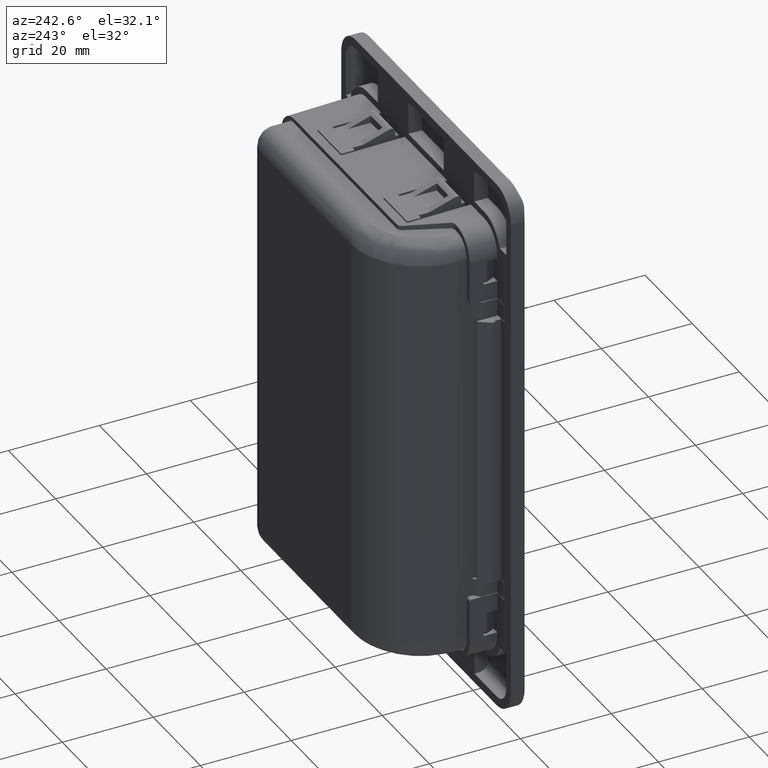
[diagram: clean part render]
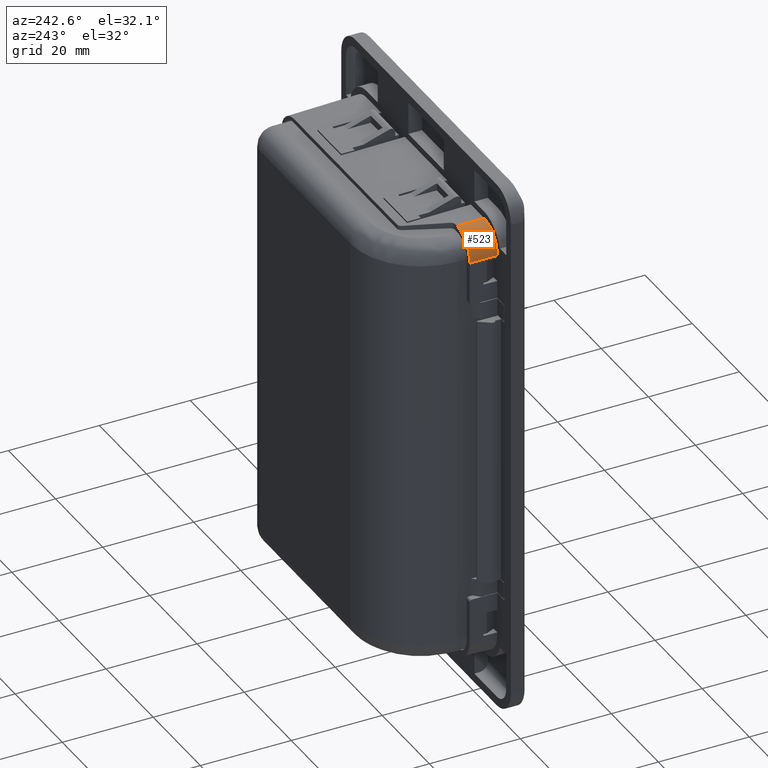
[diagram: same view with one face highlighted and labeled with its STEP entity id]
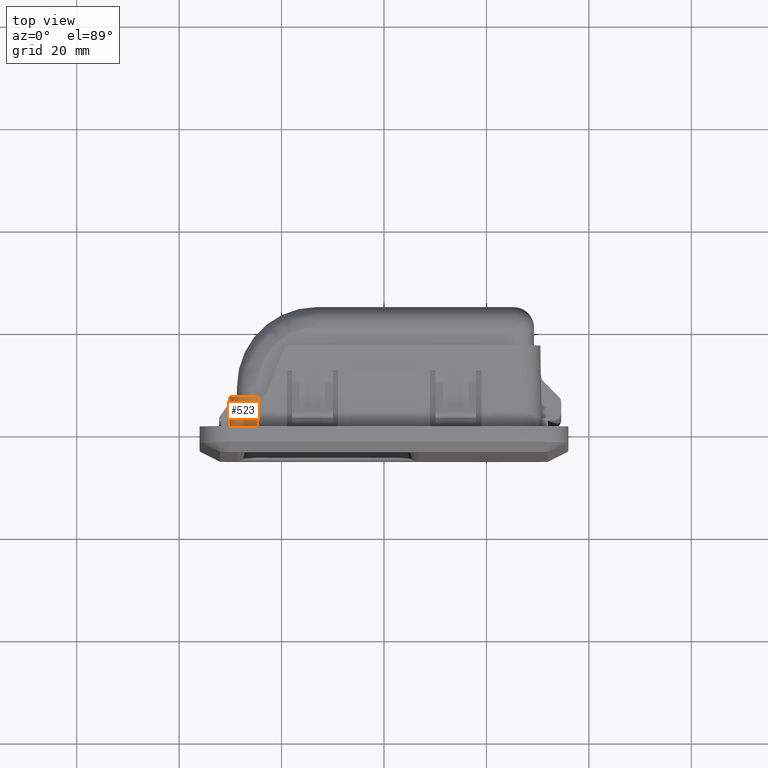
[diagram: same view with one face highlighted and labeled with its STEP entity id]
A machine part, auxiliary view. The second image highlights one B-rep face of the part: STEP entity #523.
A second angle (top view) of the same face is appended — the face is thin or edge-on in the first view.
In plain terms, the highlighted cylindrical surface (edge-blend (fillet) strip) has radius 5.5 mm, axis along (0.0174, 0.9997, -0.0174).
Its self-contained STEP definition (entity closure, byte-faithful):
#523=ADVANCED_FACE('',(#5877),#5876,.T.);
#5876=CYLINDRICAL_SURFACE('',#13506,5.50000000000E+000);
#5877=FACE_OUTER_BOUND('',#13507,.T.);
#13503=CARTESIAN_POINT('',(-8.58855975508E+001,-3.50536853383E+003,1.04985597551E+002));
#13504=DIRECTION('',(1.74497491607E-002,9.99695459882E-001,-1.74497491607E-002));
#13505=DIRECTION('',(-9.99847695156E-001,1.74524064372E-002,-6.95274637559E-012));
#13506=AXIS2_PLACEMENT_3D('',#13503,#13504,#13505);
#13507=EDGE_LOOP('',(#21431,#21432,#21433,#21434));
#21431=ORIENTED_EDGE('',*,*,#25484,.F.);
#21432=ORIENTED_EDGE('',*,*,#25485,.F.);
#21433=ORIENTED_EDGE('',*,*,#25486,.F.);
#21434=ORIENTED_EDGE('',*,*,#25066,.F.);
#25066=EDGE_CURVE('',#35597,#35604,#35605,.T.);
#25484=EDGE_CURVE('',#38356,#35597,#38357,.T.);
#25485=EDGE_CURVE('',#38363,#38356,#38364,.T.);
#25486=EDGE_CURVE('',#35604,#38363,#38370,.T.);
#35597=VERTEX_POINT('',#47474);
#35604=VERTEX_POINT('',#47478);
#35605=LINE('',#47479,#47480);
#38356=VERTEX_POINT('',#49100);
#38357=(BOUNDED_CURVE() B_SPLINE_CURVE(2,(#49101,#49102,#49103),.UNSPECIFIED.,.F.,.F.) B_SPLINE_CURVE_WITH_KNOTS((3,3),(5.49793943702E+000,7.06843117732E+000),.UNSPECIFIED.) CURVE() GEOMETRIC_REPRESENTATION_ITEM() RATIONAL_B_SPLINE_CURVE((1.00000000000E+000,7.07214460575E-001,1.00000000000E+000)) REPRESENTATION_ITEM('') );
#38363=VERTEX_POINT('',#49104);
#38364=LINE('',#49105,#49106);
#38370=(BOUNDED_CURVE() B_SPLINE_CURVE(2,(#49108,#49109,#49110),.UNSPECIFIED.,.F.,.F.) B_SPLINE_CURVE_WITH_KNOTS((3,3),(-7.06843117733E+000,-5.49793943703E+000),.UNSPECIFIED.) CURVE() GEOMETRIC_REPRESENTATION_ITEM() RATIONAL_B_SPLINE_CURVE((1.00000000000E+000,7.07214460574E-001,1.00000000000E+000)) REPRESENTATION_ITEM('') );
#47474=CARTESIAN_POINT('',(-2.45961072868E+001,6.00000000001E+000,4.91952696105E+001));
#47478=CARTESIAN_POINT('',(-2.47008376763E+001,4.70734562441E-011,4.93000000001E+001));
#47479=CARTESIAN_POINT('',(-2.45961072868E+001,6.00000000001E+000,4.91952696105E+001));
#47480=VECTOR('',#47481,6.00182779731E+000);
#47481=DIRECTION('',(-1.74497491607E-002,-9.99695459882E-001,1.74497491607E-002));
#49100=CARTESIAN_POINT('',(-3.00952696102E+001,6.00000000001E+000,4.36961072872E+001));
#49101=CARTESIAN_POINT('',(-3.00952696101E+001,6.00000000001E+000,4.36961072872E+001));
#49102=CARTESIAN_POINT('',(-3.00952696101E+001,6.00000000001E+000,4.91952696105E+001));
#49103=CARTESIAN_POINT('',(-2.45961072868E+001,6.00000000001E+000,4.91952696105E+001));
#49104=CARTESIAN_POINT('',(-3.01999999997E+001,4.70734562441E-011,4.38008376767E+001));
#49105=CARTESIAN_POINT('',(-3.01999999997E+001,4.54747350886E-011,4.38008376767E+001));
#49106=VECTOR('',#49107,6.00182779731E+000);
#49107=DIRECTION('',(1.74497491607E-002,9.99695459882E-001,-1.74497491607E-002));
#49108=CARTESIAN_POINT('',(-2.47008376763E+001,-1.19904086660E-011,4.93000000001E+001));
#49109=CARTESIAN_POINT('',(-3.01999999997E+001,-1.19904086660E-011,4.93000000001E+001));
#49110=CARTESIAN_POINT('',(-3.01999999997E+001,-1.19904086660E-011,4.38008376767E+001));